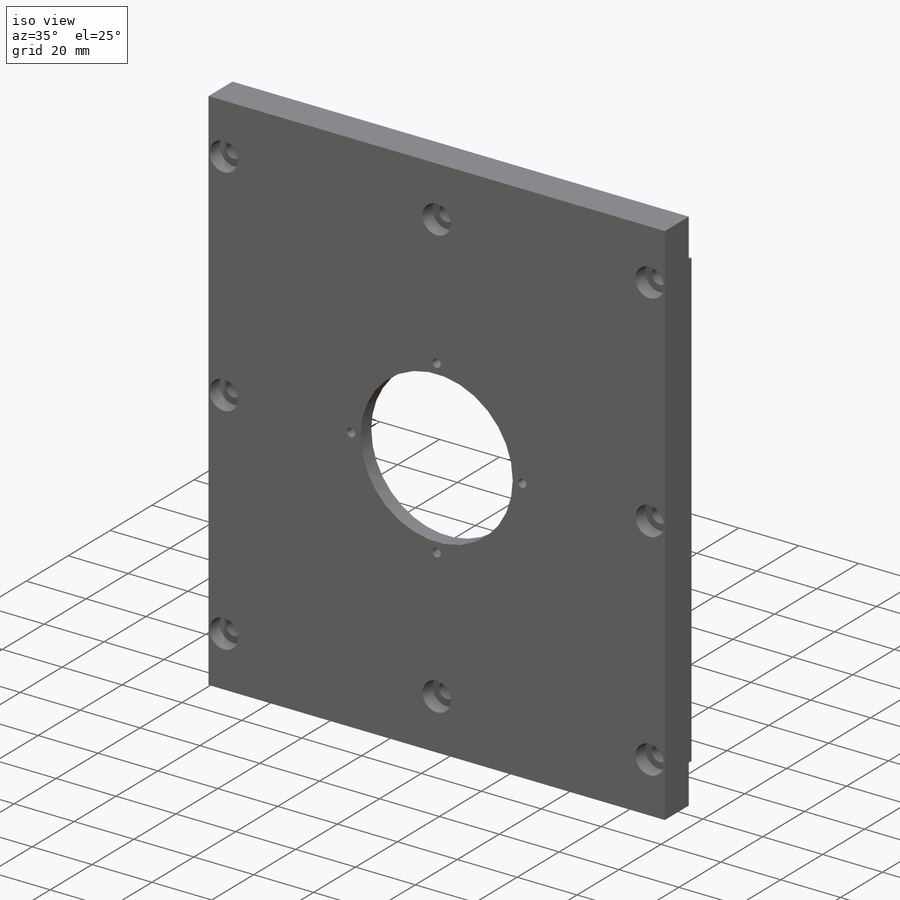
[diagram: iso view]
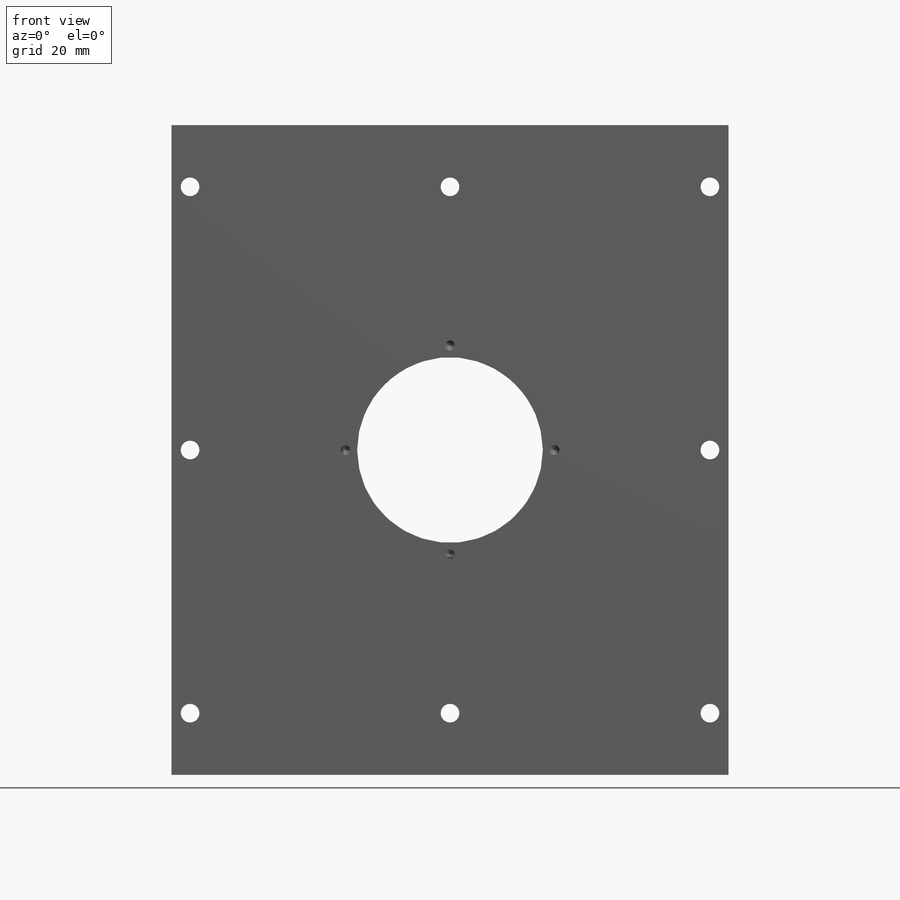
[diagram: front view]
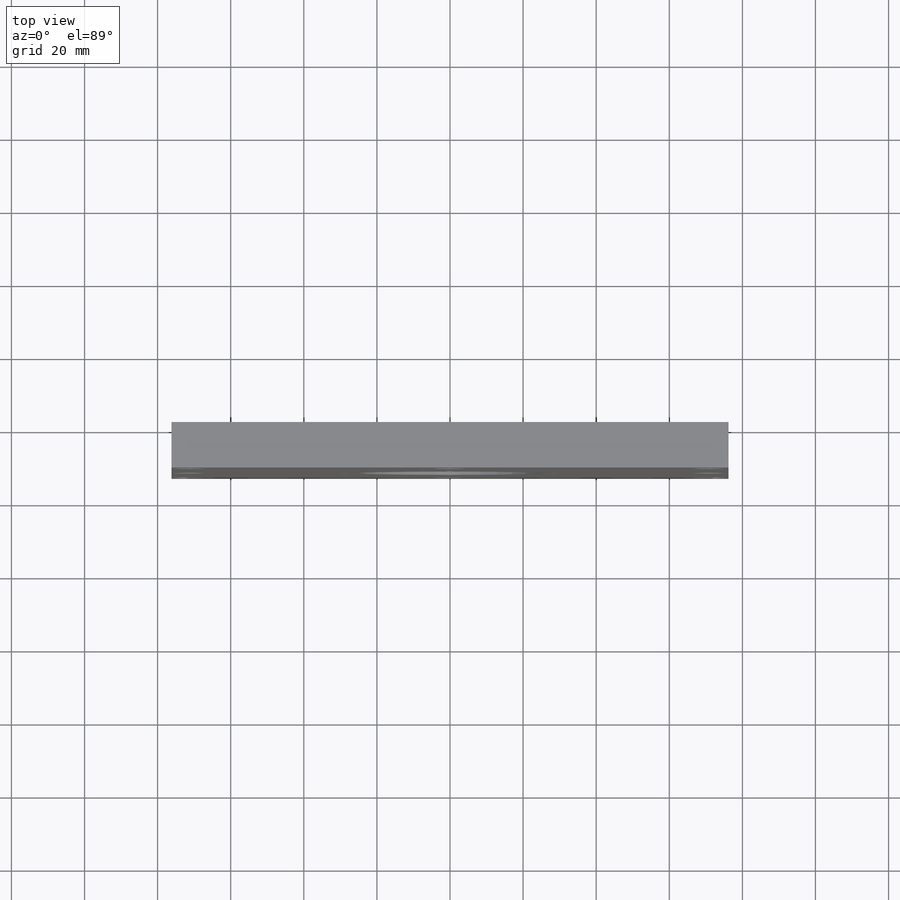
[diagram: top view]
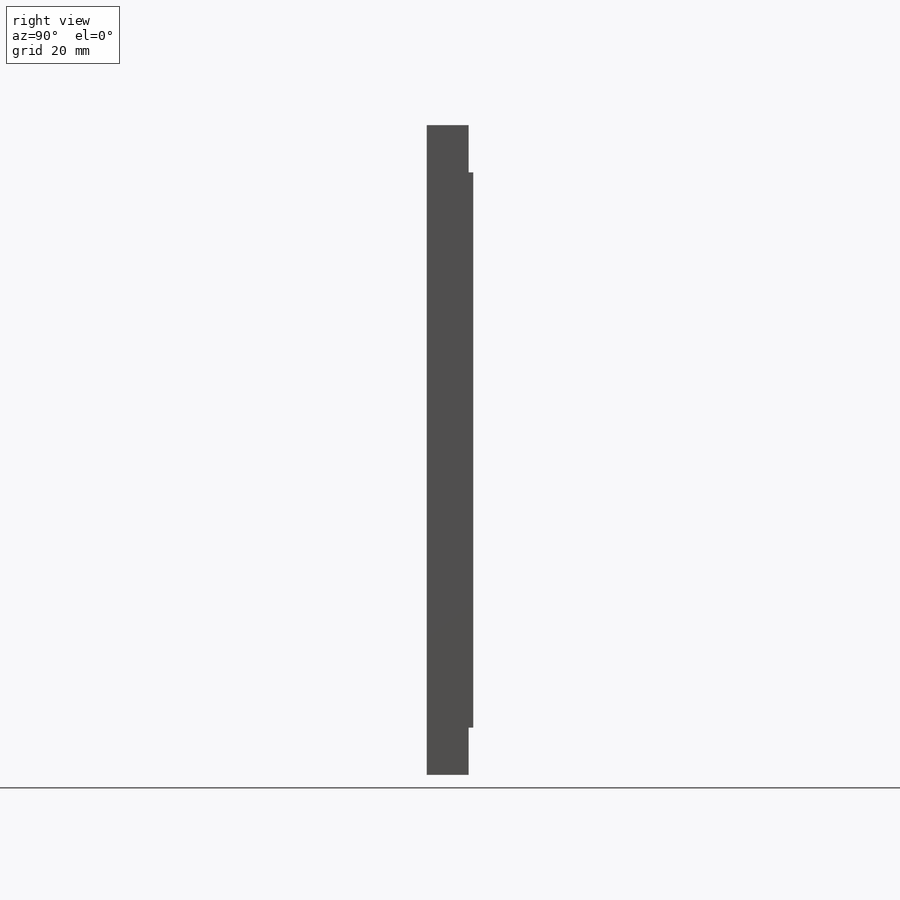
[diagram: right view]
SOLIDWORKS PART (.sldprt)
format: sldprt  version: not decoded by parser v0  size: 652,800 bytes
history: native  units: mm
features: sketch x22, cut_extrude x11, mirror x8, hole x5, pattern_circular x5, fillet x2, material x1, extrude x1, chamfer x1 (+15 scaffold rows collapsed)
feature tree (71):
  scaffold x15  (default folders/planes/origin — collapsed)
  material  "Material <not specified>"
  sketch  "Sketch1"  dims[c1.D1=152.4mm c1.D2=152.4mm c1.D3=76.2mm c1.D4=76.2mm c2.D2=177.8mm c2.D3=88.9mm]
  extrude  "Boss-Extrude1"  Depth=12.7mm
  sketch  "Sketch2"  dims[D1=50.8mm D2=50.8mm D3=50.8mm D4=50.8mm]
  cut_extrude  "Cut-Extrude1"  [1 undecoded]
  sketch  "Sketch3"  dims[D1=50.8mm]
  cut_extrude  "Cut-Extrude2"  [1 undecoded]
  hole  "#4-40 Tapped Hole1"  Diameter=2.2606mm Depth=10.16mm
  sketch  "Sketch5"  dims[c1.D1=31.75mm c1.D2=31.75mm c1.D3=~44.901281mm c2.D1=~44.901281mm c2.D2=~39.488875mm c3.D2=45.0deg]
  sketch  "Sketch4"  dims[hole-wizard template sketch: 47 standard entries collapsed; hole parameters kept: c15.Tap Drill Depth=10.16mm c15.D3=~14.816244mm c15.Drill Angle=118.0deg]
  sketch  "Sketch6"  dims[D1=6.604mm]
  cut_extrude  "Cut-Extrude3"  Depth=3.175mm
  pattern_circular  "CirPattern1"  Count=4 Angle=360deg
  mirror  "Mirror1"
  mirror  "Mirror2"
  hole  "CBORE for #10 Socket Head Cap Screw1"  Diameter=3.175mm Depth=12.7mm
  sketch  "Sketch8"  dims[c1.D1=144.018mm c1.D2=16.891mm c1.D3=59.309mm c1.D4=58.7375mm c1.D5=71.4375mm c2.D2=38.1mm c2.D3=72.009mm c2.D6=59.309mm c2.D4=50.8mm c3.D2=50.8mm]
  sketch  "Sketch7"  dims[hole-wizard template sketch: 41 standard entries collapsed; hole parameters kept: c12.Thru Hole Dia.=3.175mm c12.Thru Hole Depth=12.7mm c12.C'Bore Dia.=6.35mm c12.C'Bore Depth=6.35mm]
  mirror  "Mirror3"
  hole  "CBORE for #10 Socket Head Cap Screw2"  Diameter=5.1054mm Depth=12.7mm
  sketch  "Sketch10"  dims[c1.D1=5.08mm c1.D2=38.1mm c1.D3=16.891mm c1.D4=5.08mm c2.D2=16.891mm]
  sketch  "Sketch9"  dims[hole-wizard template sketch: 43 standard entries collapsed; hole parameters kept: c12.C'Bore Dia.=9.525mm c12.C'Bore Depth=4.826mm]
  mirror  "Mirror4"
  mirror  "Mirror5"
  sketch  "Sketch11"  dims[D1=76.2mm D2=38.1mm D3=76.2mm D4=38.1mm]
  cut_extrude  "Cut-Extrude4"  Depth=3.175mm
  fillet  "Fillet1"  Radius=3.175mm
  pattern_circular  "CirPattern2"  Count=4 Angle=360deg
  hole  "#4-40 Tapped Hole3"  Diameter=2.2606mm Depth=10.16mm
  sketch  "Sketch15"  dims[c1.D1=31.75mm c1.D2=31.75mm c2.D1=31.75mm c2.D2=31.75mm c3.D1=~61.483966mm c4.D1=30.0deg c4.D2=31.75mm c5.D1=31.75mm c5.D3=~89.043543mm c6.D1=31.75mm c6.D2=31.75mm c6.D3=~46.263928mm c7.D1=44.9072mm]
  sketch  "Sketch17"  dims[hole-wizard template sketch: 47 standard entries collapsed; hole parameters kept: c15.Tap Drill Depth=10.16mm c15.D3=~14.816244mm c15.Drill Angle=118.0deg]
  sketch  "Sketch19"  dims[D1=6.604mm]
  cut_extrude  "Cut-Extrude5"  Depth=3.175mm
  pattern_circular  "CirPattern3"  Count=4 Angle=360deg
  sketch  "Sketch20"  dims[D1=13.208mm]
  cut_extrude  "Cut-Extrude6"  Depth=6.35mm
  mirror  "Mirror6"
  mirror  "Mirror7"
  sketch  "Sketch21"  dims[c1.D1=12.954mm c1.D2=177.8mm c1.D3=88.9mm c2.D1=12.954mm c2.D3=88.9mm c2.D4=19.05mm]
  cut_extrude  "Cut-Extrude7"  Depth=1.27mm
  mirror  "Mirror8"
  sketch  "Sketch22"  dims[c1.D1=13.208mm c1.D2=~44.901281mm c1.D3=~57.824992mm c2.D3=45.0deg]
  cut_extrude  "Cut-Extrude8"  Depth=8.89mm
  pattern_circular  "CirPattern4"  Count=4 Angle=360deg
  hole  "#6-32 Tapped Hole1"  Diameter=2.7051mm Depth=5.08mm
  sketch  "Sketch25"  dims[D1=28.575mm]
  sketch  "Sketch24"  dims[hole-wizard template sketch: 47 standard entries collapsed; hole parameters kept: c15.Tap Drill Depth=5.08mm c15.D3=~14.816244mm c15.Drill Angle=118.0deg]
  sketch  "Sketch26"  dims[D1=6.604mm]
  cut_extrude  "Cut-Extrude9"  Depth=3.175mm
  pattern_circular  "CirPattern5"  Count=4 Angle=360deg
  sketch  "Sketch27"  dims[c1.D6=2.54mm c1.D1=2.032mm c1.D2=2.032mm c1.D3=2.032mm c1.D4=2.032mm c2.D1=109.982mm c2.D2=109.982mm c2.D3=54.991mm c2.D4=54.991mm c2.D5=2.3368mm]
  cut_extrude  "Cut-Extrude14"  Depth=2.032mm
  fillet  "Measure2"  [1 undecoded]
  chamfer  "Chamfer1"  Distance=7.62mm Angle=45deg
  sketch  "Sketch28"  dims[c1.D6=2.54mm c1.D1=2.032mm c1.D2=2.032mm c1.D3=2.032mm c1.D4=2.032mm c2.D1=135.255mm c2.D2=135.255mm c2.D3=67.6275mm c2.D4=67.6275mm c3.D3=67.6275mm c3.D4=67.6275mm c3.D5=2.3368mm]
  cut_extrude  "Cut-Extrude15"  Depth=2.032mm
decode coverage: 44 of 55 modeling features carry decoded parameters
note: ~ marks probable driven/reference dimensions
note: 3 parameter values undecoded
summary: Diameter pulled from absorbed wizard sketch | no parameter record found for 3 features
note: suppression state not decoded; provenance and decode notes live in map.json
